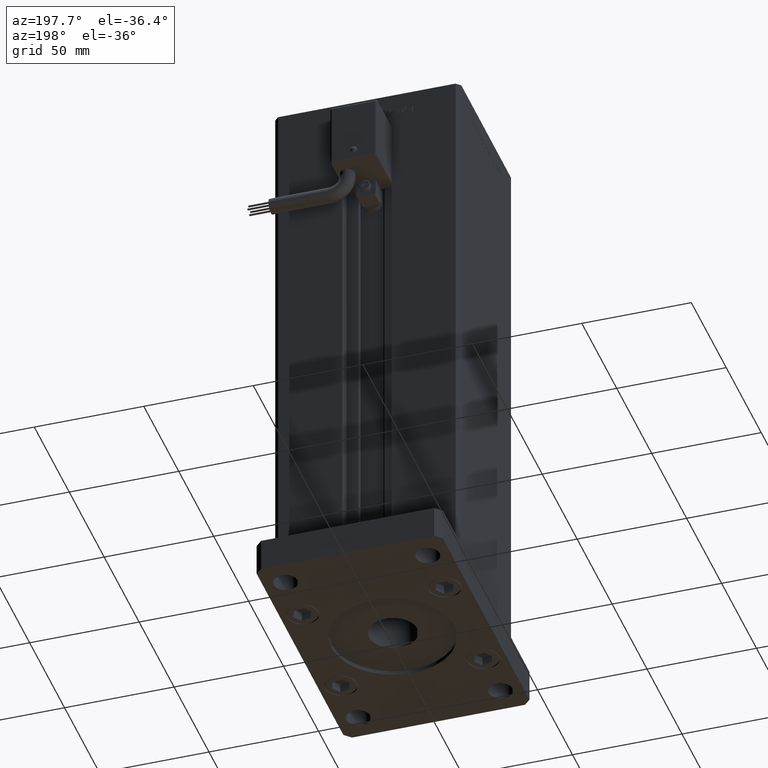
[diagram: clean part render]
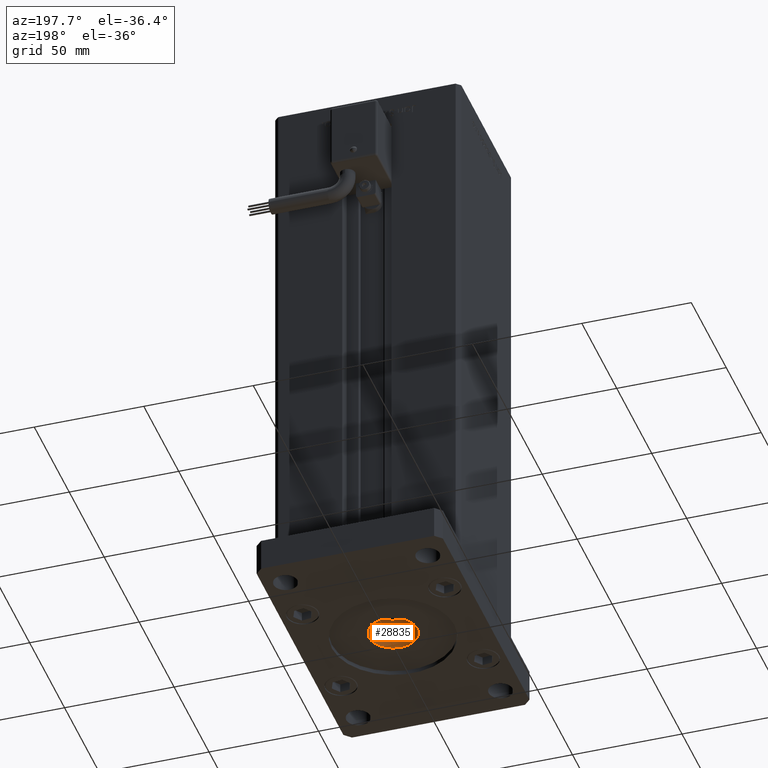
[diagram: same view with one face highlighted and labeled with its STEP entity id]
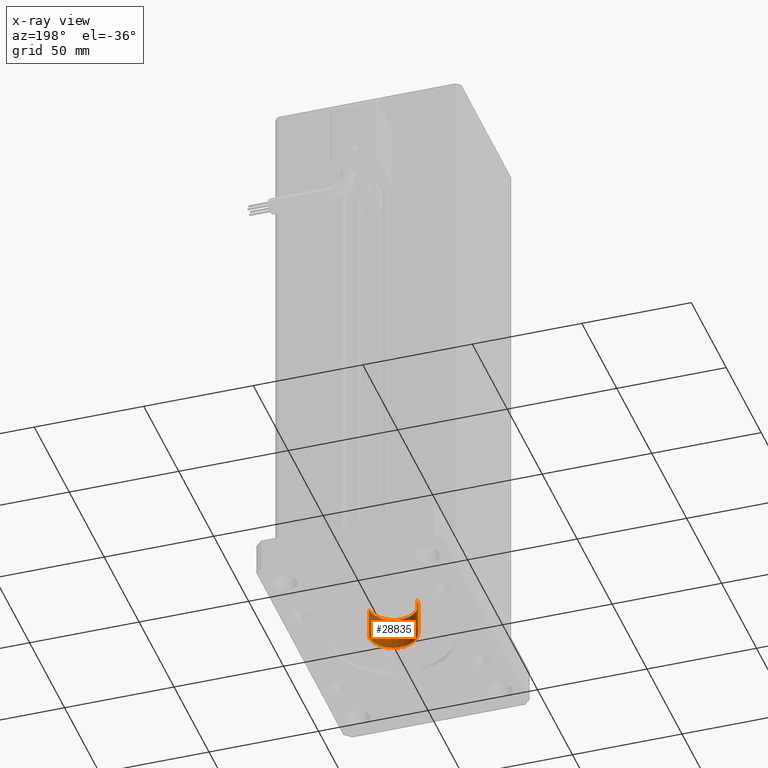
[diagram: x-ray of the same camera — body ghosted, the highlighted face saturated]
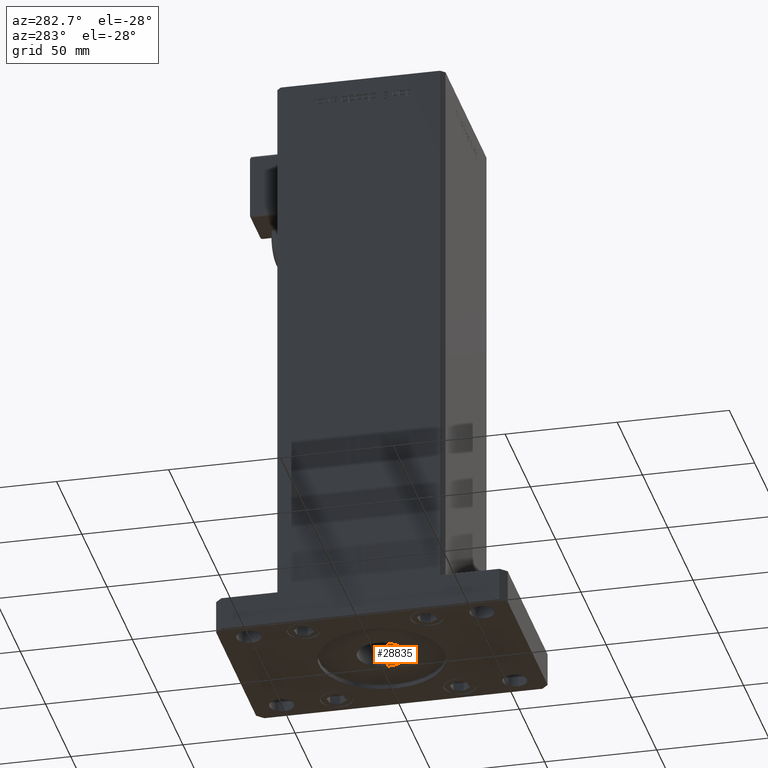
[diagram: same view with one face highlighted and labeled with its STEP entity id]
A machine part, auxiliary view. The second image highlights one B-rep face of the part: STEP entity #28835.
The next image is the same camera in x-ray: the body ghosted, the highlighted face saturated — about 0% of this face is hidden behind the body in this view.
A second angle (auxiliary view) of the same face is appended — the face is thin or edge-on in the first view.
In plain terms, the highlighted cylindrical surface (edge-blend (fillet) strip) has radius 11 mm, axis along (0, 0, 1).
Its self-contained STEP definition (entity closure, byte-faithful):
#954 = AXIS2_PLACEMENT_3D ( 'NONE', #11253, #25187, #55356 ) ;
#3993 = CARTESIAN_POINT ( 'NONE',  ( 11.00000000000000000, 0.000000000000000000, 0.000000000000000000 ) ) ;
#4491 = AXIS2_PLACEMENT_3D ( 'NONE', #14706, #21896, #39245 ) ;
#4529 = CYLINDRICAL_SURFACE ( 'NONE', #4491, 11.00000000000000000 ) ;
#5770 = VECTOR ( 'NONE', #26453, 1000.000000000000000 ) ;
#6213 = CIRCLE ( 'NONE', #49838, 11.00000000000000000 ) ;
#11101 = CARTESIAN_POINT ( 'NONE',  ( -11.00000000000000000, 1.347111479062088405E-15, 2.000000000000000000 ) ) ;
#11231 = EDGE_CURVE ( 'NONE', #16253, #12293, #12531, .T. ) ;
#11253 = CARTESIAN_POINT ( 'NONE',  ( 0.000000000000000000, 0.000000000000000000, 2.000000000000000000 ) ) ;
#12293 = VERTEX_POINT ( 'NONE', #18487 ) ;
#12531 = LINE ( 'NONE', #3993, #13809 ) ;
#13809 = VECTOR ( 'NONE', #21363, 1000.000000000000000 ) ;
#14545 = ORIENTED_EDGE ( 'NONE', *, *, #21597, .T. ) ;
#14706 = CARTESIAN_POINT ( 'NONE',  ( 0.000000000000000000, 0.000000000000000000, 0.000000000000000000 ) ) ;
#15143 = EDGE_CURVE ( 'NONE', #25213, #34018, #34446, .T. ) ;
#16253 = VERTEX_POINT ( 'NONE', #36978 ) ;
#18487 = CARTESIAN_POINT ( 'NONE',  ( 11.00000000000000000, 0.000000000000000000, 17.00000000000000000 ) ) ;
#20076 = CARTESIAN_POINT ( 'NONE',  ( 0.000000000000000000, 0.000000000000000000, 17.00000000000000000 ) ) ;
#21363 = DIRECTION ( 'NONE',  ( -0.000000000000000000, -0.000000000000000000, 1.000000000000000000 ) ) ;
#21597 = EDGE_CURVE ( 'NONE', #34018, #12293, #6213, .T. ) ;
#21896 = DIRECTION ( 'NONE',  ( -0.000000000000000000, -0.000000000000000000, 1.000000000000000000 ) ) ;
#24904 = DIRECTION ( 'NONE',  ( 1.000000000000000000, 0.000000000000000000, 0.000000000000000000 ) ) ;
#25187 = DIRECTION ( 'NONE',  ( -0.000000000000000000, -0.000000000000000000, 1.000000000000000000 ) ) ;
#25213 = VERTEX_POINT ( 'NONE', #11101 ) ;
#26453 = DIRECTION ( 'NONE',  ( -0.000000000000000000, -0.000000000000000000, 1.000000000000000000 ) ) ;
#28835 = ADVANCED_FACE ( 'NONE', ( #43518 ), #4529, .F. ) ;
#29739 = ORIENTED_EDGE ( 'NONE', *, *, #15143, .T. ) ;
#31683 = EDGE_CURVE ( 'NONE', #25213, #16253, #35496, .T. ) ;
#34018 = VERTEX_POINT ( 'NONE', #44473 ) ;
#34446 = LINE ( 'NONE', #35280, #5770 ) ;
#35280 = CARTESIAN_POINT ( 'NONE',  ( -11.00000000000000000, 1.347111479062088405E-15, 0.000000000000000000 ) ) ;
#35496 = CIRCLE ( 'NONE', #954, 11.00000000000000000 ) ;
#36978 = CARTESIAN_POINT ( 'NONE',  ( 11.00000000000000000, 0.000000000000000000, 2.000000000000000000 ) ) ;
#39245 = DIRECTION ( 'NONE',  ( 1.000000000000000000, 0.000000000000000000, 0.000000000000000000 ) ) ;
#40965 = ORIENTED_EDGE ( 'NONE', *, *, #11231, .F. ) ;
#43518 = FACE_OUTER_BOUND ( 'NONE', #46239, .T. ) ;
#44473 = CARTESIAN_POINT ( 'NONE',  ( -11.00000000000000000, 1.347111479062088405E-15, 17.00000000000000000 ) ) ;
#46239 = EDGE_LOOP ( 'NONE', ( #52855, #29739, #14545, #40965 ) ) ;
#49838 = AXIS2_PLACEMENT_3D ( 'NONE', #20076, #50796, #24904 ) ;
#50796 = DIRECTION ( 'NONE',  ( 0.000000000000000000, 0.000000000000000000, 1.000000000000000000 ) ) ;
#52855 = ORIENTED_EDGE ( 'NONE', *, *, #31683, .F. ) ;
#55356 = DIRECTION ( 'NONE',  ( -1.000000000000000000, 0.000000000000000000, 0.000000000000000000 ) ) ;